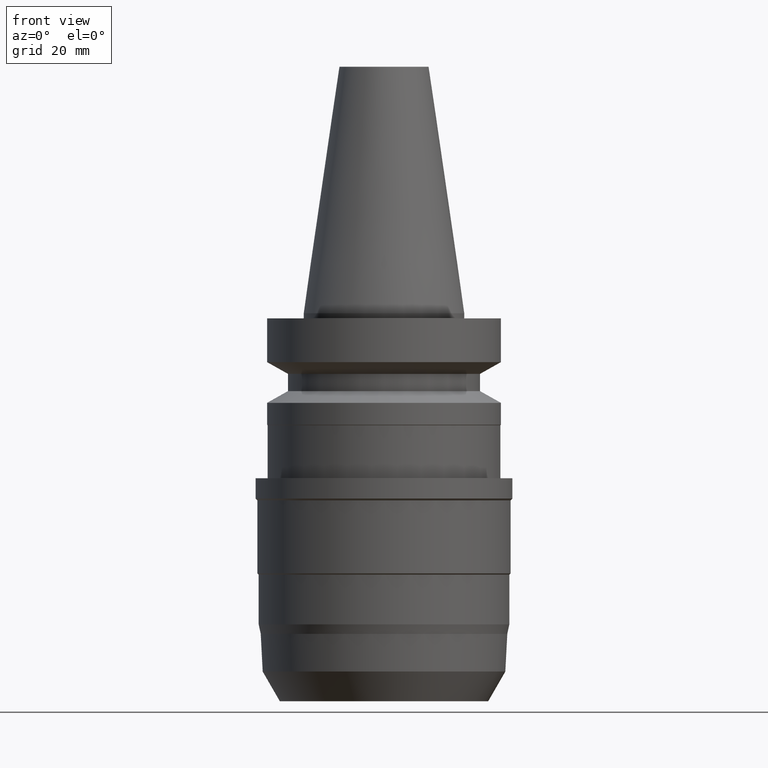
[diagram: clean part render]
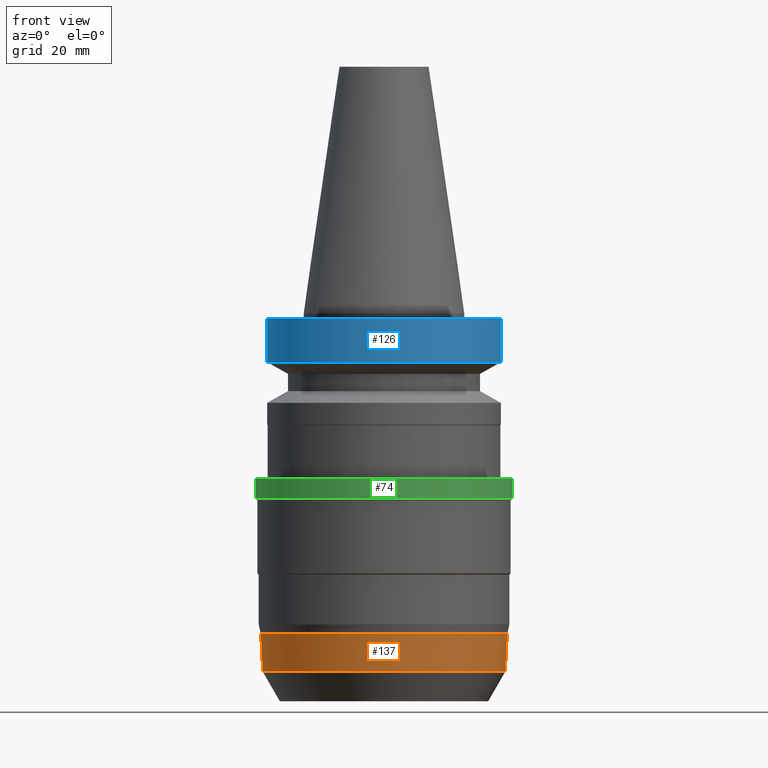
[diagram: same view with three faces highlighted in distinct colors, each labeled with its STEP entity id]
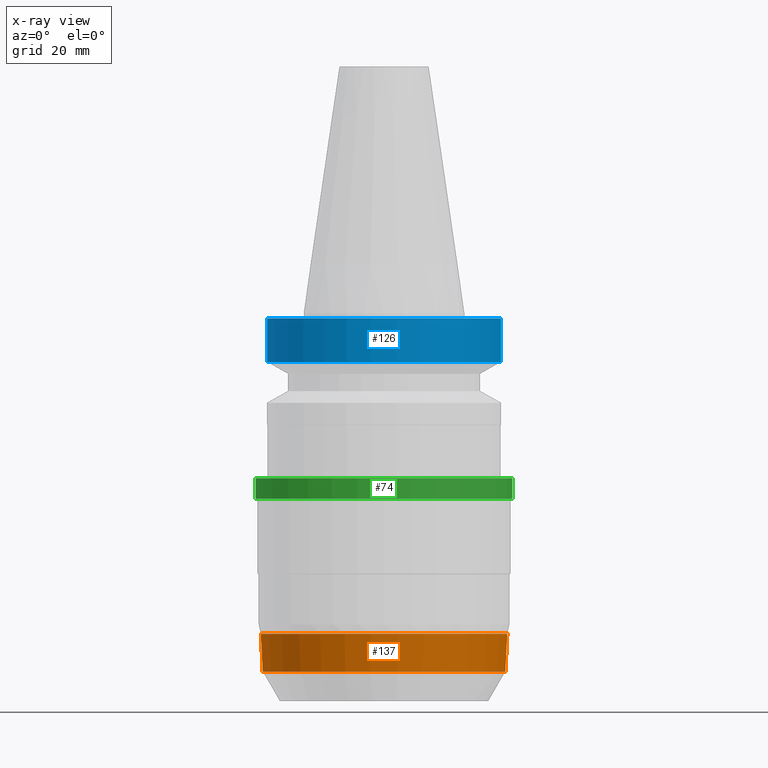
[diagram: x-ray of the same camera — body ghosted, the three highlighted faces saturated]
A machine part, front view with three faces highlighted in distinct colors.
The next image is the same camera in x-ray (body ghosted, the three faces saturated) — at least one of them is partly hidden behind the body in this view.
Their STEP definitions:

[orange] entity #137 — the highlighted conical surface has half-angle 3 deg.
#66=EDGE_CURVE('Unnamed[1]',#188,#188,#189,.T.);
#137=ADVANCED_FACE('Unnamed[1]',(#301,#302),#303,.T.);
#147=EDGE_CURVE('Unnamed[1]',#316,#316,#317,.T.);
#188=VERTEX_POINT('',#361);
#189=CIRCLE('',#362,24.2499999999994);
#301=FACE_BOUND('',#502,.T.);
#302=FACE_BOUND('',#503,.T.);
#303=CONICAL_SURFACE('',#504,24.0557884976076,0.052359877559767);
#316=VERTEX_POINT('',#520);
#317=CIRCLE('',#521,23.8615769952158);
#361=CARTESIAN_POINT('',(3.85555707328909E-015,24.2499999999994,-62.9660254037895));
#362=AXIS2_PLACEMENT_3D('',#567,#568,#569);
#502=EDGE_LOOP('',(#694));
#503=EDGE_LOOP('',(#695));
#504=AXIS2_PLACEMENT_3D('',#696,#697,#698);
#520=CARTESIAN_POINT('',(4.3093837723321E-015,23.8615769952158,-70.3775778507314));
#521=AXIS2_PLACEMENT_3D('',#709,#710,#711);
#567=CARTESIAN_POINT('',(3.85555707328909E-015,7.71111414657818E-015,-62.9660254037895));
#568=DIRECTION('',(6.12323399573677E-017,1.22464679914735E-016,-1.0));
#569=DIRECTION('',(-1.23259516440783E-032,1.0,1.22464679914735E-016));
#694=ORIENTED_EDGE('',*,*,#147,.F.);
#695=ORIENTED_EDGE('',*,*,#66,.T.);
#696=CARTESIAN_POINT('',(4.08247042281059E-015,8.16494084562118E-015,-66.6718016272605));
#697=DIRECTION('',(-6.12323399573677E-017,-1.22464679914735E-016,1.0));
#698=DIRECTION('',(-1.23259516440783E-032,1.0,1.22464679914735E-016));
#709=CARTESIAN_POINT('',(4.3093837723321E-015,8.61876754466419E-015,-70.3775778507314));
#710=DIRECTION('',(6.12323399573676E-017,1.22464679914735E-016,-1.0));
#711=DIRECTION('',(-1.23259516440783E-032,1.0,1.22464679914735E-016));

[blue] entity #126 — the highlighted cylindrical surface (bore or boss wall) has radius 23 mm, axis along (0, 0, -1).
#68=EDGE_CURVE('Unnamed[1]',#191,#191,#192,.T.);
#92=EDGE_CURVE('Unnamed[1]',#230,#230,#231,.T.);
#126=ADVANCED_FACE('Unnamed[1]',(#284,#285),#286,.T.);
#191=VERTEX_POINT('',#365);
#192=CIRCLE('',#366,23.0);
#230=VERTEX_POINT('',#413);
#231=CIRCLE('',#414,23.0);
#284=FACE_BOUND('',#480,.T.);
#285=FACE_BOUND('',#481,.T.);
#286=CYLINDRICAL_SURFACE('',#482,23.0);
#365=CARTESIAN_POINT('',(5.87830463590729E-016,23.0,-9.59999999999999));
#366=AXIS2_PLACEMENT_3D('',#570,#571,#572);
#413=CARTESIAN_POINT('',(6.12323399573674E-017,23.0,-0.999999999999997));
#414=AXIS2_PLACEMENT_3D('',#615,#616,#617);
#480=EDGE_LOOP('',(#676));
#481=EDGE_LOOP('',(#677));
#482=AXIS2_PLACEMENT_3D('',#678,#679,#680);
#570=CARTESIAN_POINT('',(5.87830463590729E-016,1.17566092718146E-015,-9.59999999999999));
#571=DIRECTION('',(6.12323399573677E-017,1.22464679914735E-016,-1.0));
#572=DIRECTION('',(-1.23259516440783E-032,1.0,1.22464679914735E-016));
#615=CARTESIAN_POINT('',(6.12323399573677E-017,1.22464679914735E-016,-1.0));
#616=DIRECTION('',(6.12323399573677E-017,1.22464679914735E-016,-1.0));
#617=DIRECTION('',(-1.23259516440783E-032,1.0,1.22464679914735E-016));
#676=ORIENTED_EDGE('',*,*,#68,.F.);
#677=ORIENTED_EDGE('',*,*,#92,.T.);
#678=CARTESIAN_POINT('',(3.24531401774048E-016,6.49062803548097E-016,-5.3));
#679=DIRECTION('',(6.12323399573677E-017,1.22464679914735E-016,-1.0));
#680=DIRECTION('',(-1.23259516440783E-032,1.0,1.22464679914735E-016));

[green] entity #74 — the highlighted cylindrical surface (bore or boss wall) has radius 25.35 mm, axis along (0, 0, -1).
#74=ADVANCED_FACE('Unnamed[1]',(#200,#201),#202,.T.);
#94=EDGE_CURVE('Unnamed[1]',#233,#233,#234,.T.);
#159=EDGE_CURVE('Unnamed[1]',#334,#334,#335,.T.);
#200=FACE_BOUND('',#376,.T.);
#201=FACE_BOUND('',#377,.T.);
#202=CYLINDRICAL_SURFACE('',#378,25.3499999999993);
#233=VERTEX_POINT('',#417);
#234=CIRCLE('',#418,25.3500000000001);
#334=VERTEX_POINT('',#543);
#335=CIRCLE('',#544,25.3499999999984);
#376=EDGE_LOOP('',(#580));
#377=EDGE_LOOP('',(#581));
#378=AXIS2_PLACEMENT_3D('',#582,#583,#584);
#417=CARTESIAN_POINT('',(2.22885717444814E-015,25.3500000000001,-36.3999999999994));
#418=AXIS2_PLACEMENT_3D('',#618,#619,#620);
#543=CARTESIAN_POINT('',(1.98392781461888E-015,25.3499999999985,-32.4000000000027));
#544=AXIS2_PLACEMENT_3D('',#729,#730,#731);
#580=ORIENTED_EDGE('',*,*,#94,.F.);
#581=ORIENTED_EDGE('',*,*,#159,.T.);
#582=CARTESIAN_POINT('',(2.10639249453351E-015,4.21278498906702E-015,-34.4000000000011));
#583=DIRECTION('',(6.12323399573677E-017,1.22464679914735E-016,-1.0));
#584=DIRECTION('',(-1.23259516440783E-032,1.0,1.22464679914735E-016));
#618=CARTESIAN_POINT('',(2.22885717444814E-015,4.45771434889629E-015,-36.3999999999994));
#619=DIRECTION('',(6.12323399573677E-017,1.22464679914735E-016,-1.0));
#620=DIRECTION('',(-1.23259516440783E-032,1.0,1.22464679914735E-016));
#729=CARTESIAN_POINT('',(1.98392781461888E-015,3.96785562923776E-015,-32.4000000000027));
#730=DIRECTION('',(6.12323399573677E-017,1.22464679914735E-016,-1.0));
#731=DIRECTION('',(-1.23259516440783E-032,1.0,1.22464679914735E-016));